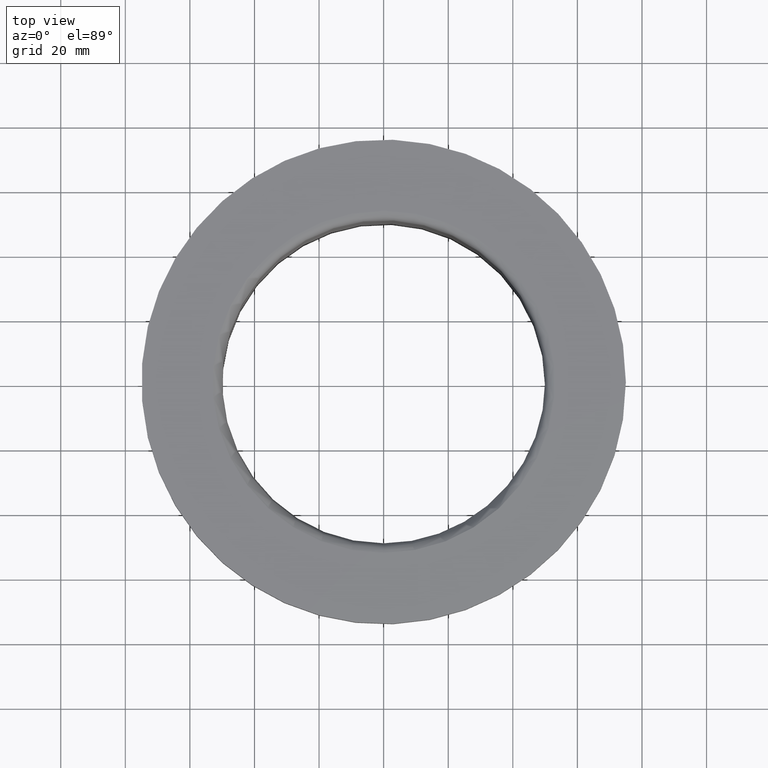
[diagram: clean part render]
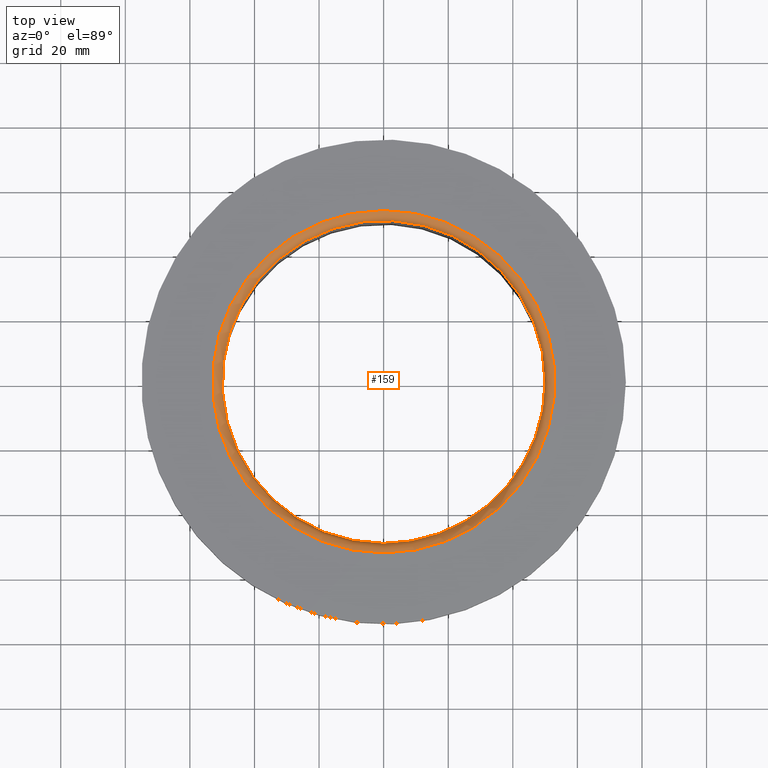
[diagram: same view with one face highlighted and labeled with its STEP entity id]
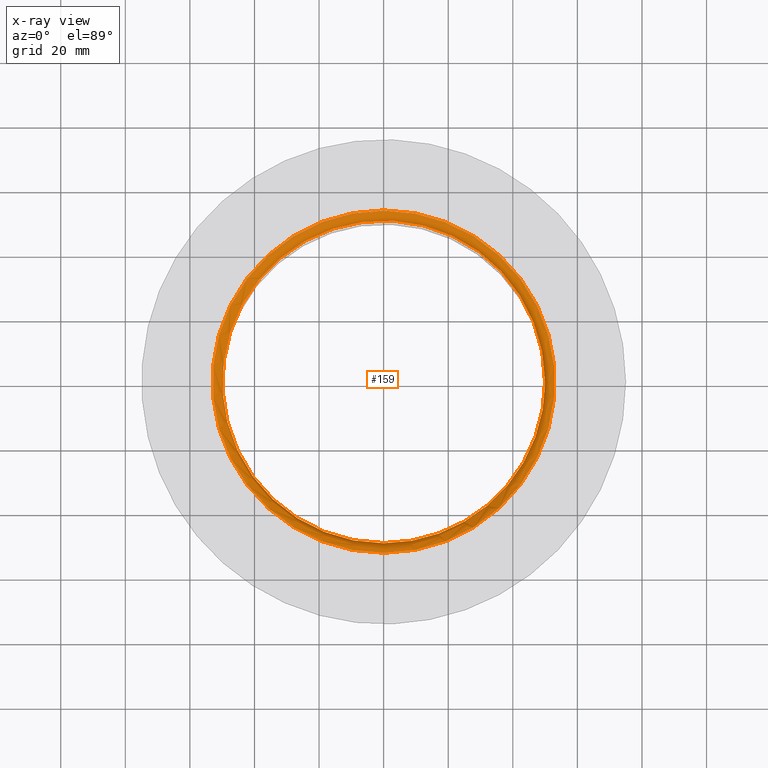
[diagram: x-ray of the same camera — body ghosted, the highlighted face saturated]
A machine part, top view. The second image highlights one B-rep face of the part: STEP entity #159.
The next image is the same camera in x-ray: the body ghosted, the highlighted face saturated — about 0% of this face is hidden behind the body in this view.
In plain terms, the highlighted toroidal blend (fillet) surface has major radius 53 mm and minor (blend) radius 3 mm.
Its self-contained STEP definition (entity closure, byte-faithful):
#159=ADVANCED_FACE('',(#182,#183),#184,.T.);
#182=FACE_OUTER_BOUND('',#210,.T.);
#183=FACE_OUTER_BOUND('',#211,.T.);
#184=TOROIDAL_SURFACE('',#212,0.053,0.003);
#210=EDGE_LOOP('',(#249));
#211=EDGE_LOOP('',(#250));
#212=AXIS2_PLACEMENT_3D('',#251,#252,#253);
#249=ORIENTED_EDGE('',*,*,#271,.F.);
#250=ORIENTED_EDGE('',*,*,#264,.F.);
#251=CARTESIAN_POINT('',(0.0,4.71489017671731E-018,0.077));
#252=DIRECTION('',(0.0,6.12323399573677E-017,1.0));
#253=DIRECTION('',(0.0,-1.0,6.12323399573677E-017));
#264=EDGE_CURVE('',#273,#273,#274,.F.);
#271=EDGE_CURVE('',#287,#287,#288,.T.);
#273=VERTEX_POINT('',#291);
#274=CIRCLE('',#292,0.053);
#287=VERTEX_POINT('',#305);
#288=CIRCLE('',#306,0.05);
#291=CARTESIAN_POINT('',(0.0,-0.053,0.08));
#292=AXIS2_PLACEMENT_3D('',#309,#310,#311);
#305=CARTESIAN_POINT('',(0.0,-0.05,0.077));
#306=AXIS2_PLACEMENT_3D('',#330,#331,#332);
#309=CARTESIAN_POINT('',(0.0,4.89858719658941E-018,0.08));
#310=DIRECTION('',(0.0,6.12323399573677E-017,1.0));
#311=DIRECTION('',(0.0,-1.0,6.12323399573677E-017));
#330=CARTESIAN_POINT('',(0.0,4.71489017671731E-018,0.077));
#331=DIRECTION('',(0.0,6.12323399573677E-017,1.0));
#332=DIRECTION('',(0.0,-1.0,6.12323399573677E-017));